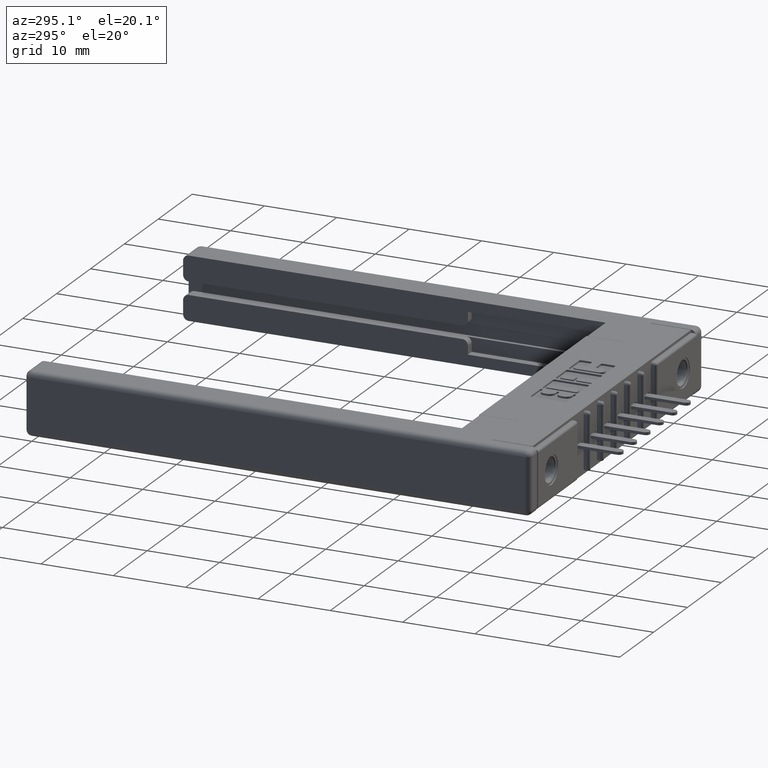
[diagram: clean part render]
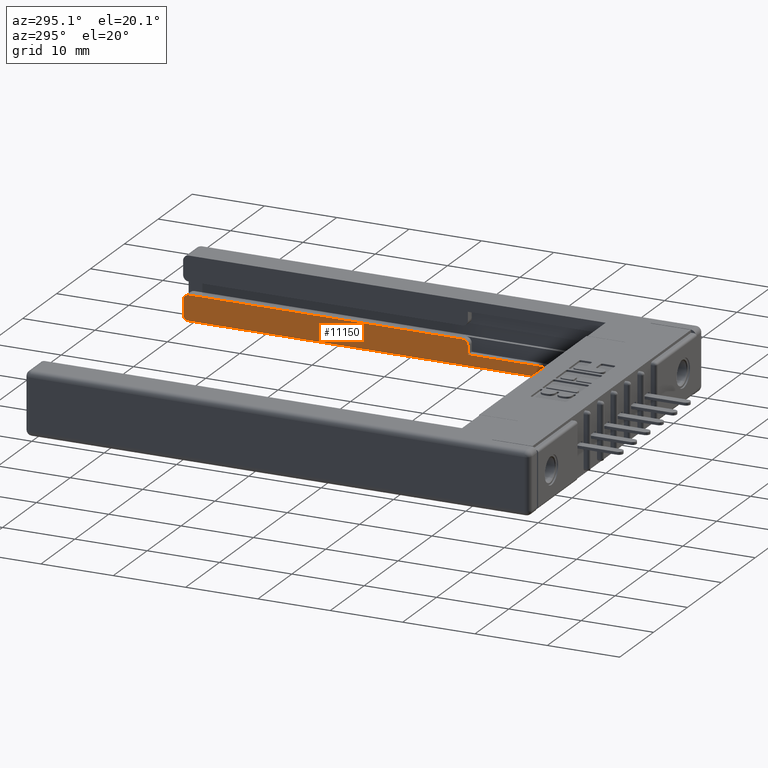
[diagram: same view with one face highlighted and labeled with its STEP entity id]
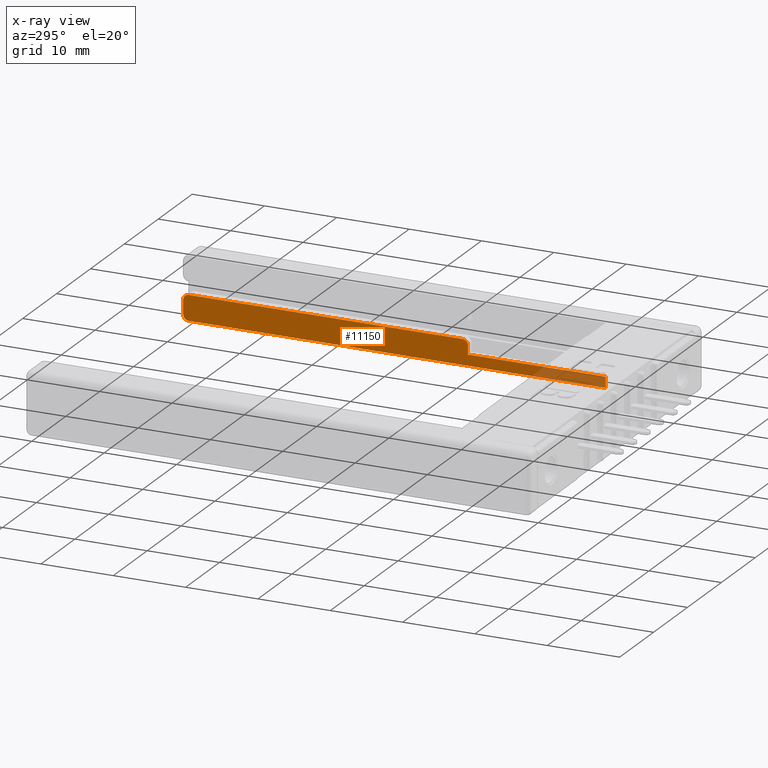
[diagram: x-ray of the same camera — body ghosted, the highlighted face saturated]
A machine part, auxiliary view. The second image highlights one B-rep face of the part: STEP entity #11150.
The next image is the same camera in x-ray: the body ghosted, the highlighted face saturated — about 9% of this face is hidden behind the body in this view.
In plain terms, the highlighted planar face has unit normal (-1, -0, -0).
Its self-contained STEP definition (entity closure, byte-faithful):
#531 = CARTESIAN_POINT ( 'NONE',  ( 0.1730000000000000400, 2.750000000000000000, 0.0000000000000000000 ) ) ;
#584 = CARTESIAN_POINT ( 'NONE',  ( 0.1730000000000000400, 2.750000000000000000, -0.3430000000000000300 ) ) ;
#607 = AXIS2_PLACEMENT_3D ( 'NONE', #3342, #8462, #5781 ) ;
#620 = AXIS2_PLACEMENT_3D ( 'NONE', #6739, #6849, #5626 ) ;
#649 = AXIS2_PLACEMENT_3D ( 'NONE', #11433, #9362, #9268 ) ;
#1544 = CARTESIAN_POINT ( 'NONE',  ( 0.1729999999999998800, 1.200000000000000000, -0.05899999999999993400 ) ) ;
#1797 = EDGE_LOOP ( 'NONE', ( #10354, #10383, #10400, #10483, #10541, #10579, #10595, #10645, #10653 ) ) ;
#1853 = VERTEX_POINT ( 'NONE', #12719 ) ;
#1916 = VECTOR ( 'NONE', #6419, 39.37007874015748100 ) ;
#1999 = CARTESIAN_POINT ( 'NONE',  ( 0.1729999999999998800, 1.229999999999999800, -0.1360000000000001200 ) ) ;
#2034 = DIRECTION ( 'NONE',  ( 0.0000000000000000000, 0.0000000000000000000, 1.000000000000000000 ) ) ;
#2114 = LINE ( 'NONE', #584, #9552 ) ;
#2584 = CARTESIAN_POINT ( 'NONE',  ( 0.1730000000000000400, 2.750000000000000000, -0.3430000000000000300 ) ) ;
#2610 = VERTEX_POINT ( 'NONE', #3925 ) ;
#3342 = CARTESIAN_POINT ( 'NONE',  ( 0.1730000000000000400, 2.719999999999999800, -0.02999999999999999900 ) ) ;
#3732 = CARTESIAN_POINT ( 'NONE',  ( 0.1729999999999998800, 1.200000000000000000, -0.1060000000000001100 ) ) ;
#3925 = CARTESIAN_POINT ( 'NONE',  ( 0.1729999999999999600, 0.4499999999999999600, -0.05899999999999993400 ) ) ;
#4033 = VERTEX_POINT ( 'NONE', #3732 ) ;
#4293 = EDGE_CURVE ( 'NONE', #2610, #6940, #9563, .T. ) ;
#4392 = VERTEX_POINT ( 'NONE', #1999 ) ;
#4602 = EDGE_CURVE ( 'NONE', #5144, #5815, #2114, .T. ) ;
#4648 = EDGE_CURVE ( 'NONE', #4033, #8557, #6167, .T. ) ;
#4665 = EDGE_CURVE ( 'NONE', #4033, #4392, #8390, .T. ) ;
#4669 = EDGE_CURVE ( 'NONE', #9593, #4392, #12929, .T. ) ;
#4688 = EDGE_CURVE ( 'NONE', #9593, #5144, #10363, .T. ) ;
#4689 = EDGE_CURVE ( 'NONE', #5815, #1853, #12489, .T. ) ;
#4693 = EDGE_CURVE ( 'NONE', #6940, #1853, #10699, .T. ) ;
#4710 = EDGE_CURVE ( 'NONE', #8557, #2610, #5257, .T. ) ;
#4855 = DIRECTION ( 'NONE',  ( -0.0000000000000000000, 0.0000000000000000000, -1.000000000000000000 ) ) ;
#4891 = FACE_OUTER_BOUND ( 'NONE', #1797, .T. ) ;
#4978 = AXIS2_PLACEMENT_3D ( 'NONE', #2584, #10652, #4855 ) ;
#5144 = VERTEX_POINT ( 'NONE', #10819 ) ;
#5257 = LINE ( 'NONE', #7844, #1916 ) ;
#5626 = DIRECTION ( 'NONE',  ( 0.0000000000000000000, 0.0000000000000000000, -1.000000000000000000 ) ) ;
#5781 = DIRECTION ( 'NONE',  ( 0.0000000000000000000, 0.0000000000000000000, -1.000000000000000000 ) ) ;
#5815 = VERTEX_POINT ( 'NONE', #10183 ) ;
#5862 = VECTOR ( 'NONE', #11546, 39.37007874015748100 ) ;
#6167 = LINE ( 'NONE', #1544, #5862 ) ;
#6232 = CARTESIAN_POINT ( 'NONE',  ( 0.1730000000000000400, 0.4499999999999999600, 0.0000000000000000000 ) ) ;
#6419 = DIRECTION ( 'NONE',  ( 1.365923996832131600E-016, -1.000000000000000000, -0.0000000000000000000 ) ) ;
#6739 = CARTESIAN_POINT ( 'NONE',  ( 0.1730000000000000400, 2.719999999999999800, -0.1060000000000001600 ) ) ;
#6750 = VECTOR ( 'NONE', #2034, 39.37007874015748100 ) ;
#6849 = DIRECTION ( 'NONE',  ( 1.000000000000000000, 0.0000000000000000000, -0.0000000000000000000 ) ) ;
#6940 = VERTEX_POINT ( 'NONE', #6232 ) ;
#7484 = VECTOR ( 'NONE', #7985, 39.37007874015748100 ) ;
#7844 = CARTESIAN_POINT ( 'NONE',  ( 0.1729999999999999600, 0.4499999999999999600, -0.05899999999999993400 ) ) ;
#7985 = DIRECTION ( 'NONE',  ( -0.0000000000000000000, 1.000000000000000000, -0.0000000000000000000 ) ) ;
#8088 = VECTOR ( 'NONE', #12988, 39.37007874015748100 ) ;
#8390 = CIRCLE ( 'NONE', #649, 0.03000000000000000600 ) ;
#8462 = DIRECTION ( 'NONE',  ( 1.000000000000000000, 0.0000000000000000000, -0.0000000000000000000 ) ) ;
#8557 = VERTEX_POINT ( 'NONE', #8690 ) ;
#8669 = PLANE ( 'NONE',  #4978 ) ;
#8690 = CARTESIAN_POINT ( 'NONE',  ( 0.1729999999999998800, 1.200000000000000000, -0.05899999999999993400 ) ) ;
#9268 = DIRECTION ( 'NONE',  ( 0.0000000000000000000, 0.0000000000000000000, -1.000000000000000000 ) ) ;
#9362 = DIRECTION ( 'NONE',  ( 1.000000000000000000, 0.0000000000000000000, -0.0000000000000000000 ) ) ;
#9552 = VECTOR ( 'NONE', #12535, 39.37007874015748100 ) ;
#9563 = LINE ( 'NONE', #9777, #6750 ) ;
#9593 = VERTEX_POINT ( 'NONE', #11271 ) ;
#9777 = CARTESIAN_POINT ( 'NONE',  ( 0.1730000000000000400, 0.4499999999999999600, -0.3430000000000000300 ) ) ;
#10183 = CARTESIAN_POINT ( 'NONE',  ( 0.1730000000000000400, 2.750000000000000000, -0.03000000000000002300 ) ) ;
#10354 = ORIENTED_EDGE ( 'NONE', *, *, #4648, .F. ) ;
#10363 = CIRCLE ( 'NONE', #620, 0.03000000000000000600 ) ;
#10383 = ORIENTED_EDGE ( 'NONE', *, *, #4665, .T. ) ;
#10400 = ORIENTED_EDGE ( 'NONE', *, *, #4669, .F. ) ;
#10483 = ORIENTED_EDGE ( 'NONE', *, *, #4688, .T. ) ;
#10541 = ORIENTED_EDGE ( 'NONE', *, *, #4602, .T. ) ;
#10579 = ORIENTED_EDGE ( 'NONE', *, *, #4689, .T. ) ;
#10595 = ORIENTED_EDGE ( 'NONE', *, *, #4693, .F. ) ;
#10645 = ORIENTED_EDGE ( 'NONE', *, *, #4293, .F. ) ;
#10652 = DIRECTION ( 'NONE',  ( 1.000000000000000000, 0.0000000000000000000, -0.0000000000000000000 ) ) ;
#10653 = ORIENTED_EDGE ( 'NONE', *, *, #4710, .F. ) ;
#10699 = LINE ( 'NONE', #531, #7484 ) ;
#10819 = CARTESIAN_POINT ( 'NONE',  ( 0.1730000000000000400, 2.750000000000000000, -0.1060000000000001800 ) ) ;
#11150 = ADVANCED_FACE ( 'NONE', ( #4891 ), #8669, .T. ) ;
#11271 = CARTESIAN_POINT ( 'NONE',  ( 0.1729999999999997100, 2.719999999999999300, -0.1360000000000001800 ) ) ;
#11433 = CARTESIAN_POINT ( 'NONE',  ( 0.1730000000000000400, 1.230000000000000000, -0.1060000000000001100 ) ) ;
#11546 = DIRECTION ( 'NONE',  ( -0.0000000000000000000, -0.0000000000000000000, 1.000000000000000000 ) ) ;
#11590 = CARTESIAN_POINT ( 'NONE',  ( 0.1729999999999999600, 0.4500000000000001200, -0.1360000000000000900 ) ) ;
#12489 = CIRCLE ( 'NONE', #607, 0.02999999999999999900 ) ;
#12535 = DIRECTION ( 'NONE',  ( 0.0000000000000000000, 0.0000000000000000000, 1.000000000000000000 ) ) ;
#12719 = CARTESIAN_POINT ( 'NONE',  ( 0.1730000000000000400, 2.719999999999999800, 0.0000000000000000000 ) ) ;
#12929 = LINE ( 'NONE', #11590, #8088 ) ;
#12988 = DIRECTION ( 'NONE',  ( 1.187759997245332100E-016, -1.000000000000000000, 3.711749991391662600E-017 ) ) ;